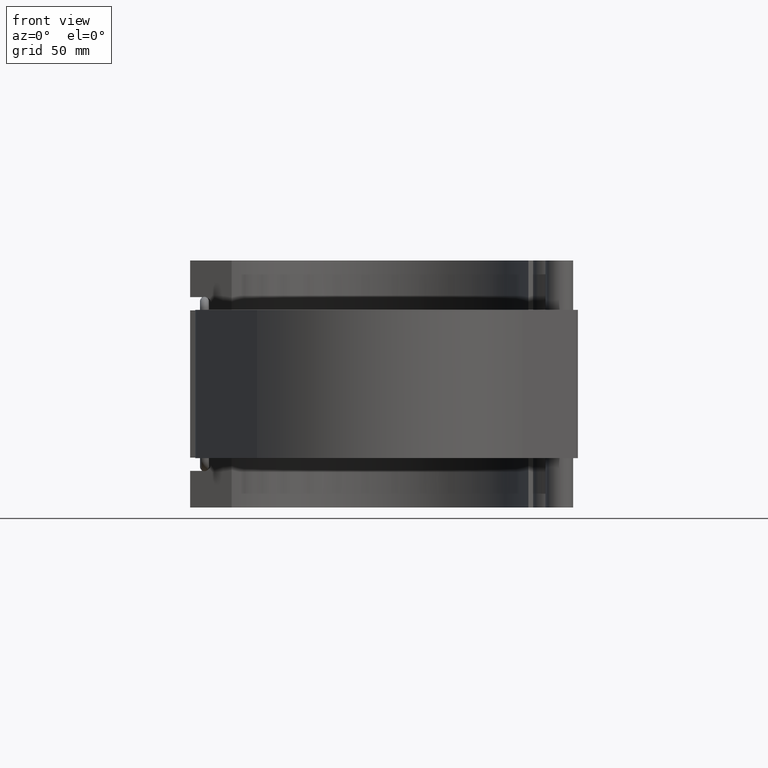
[diagram: clean part render]
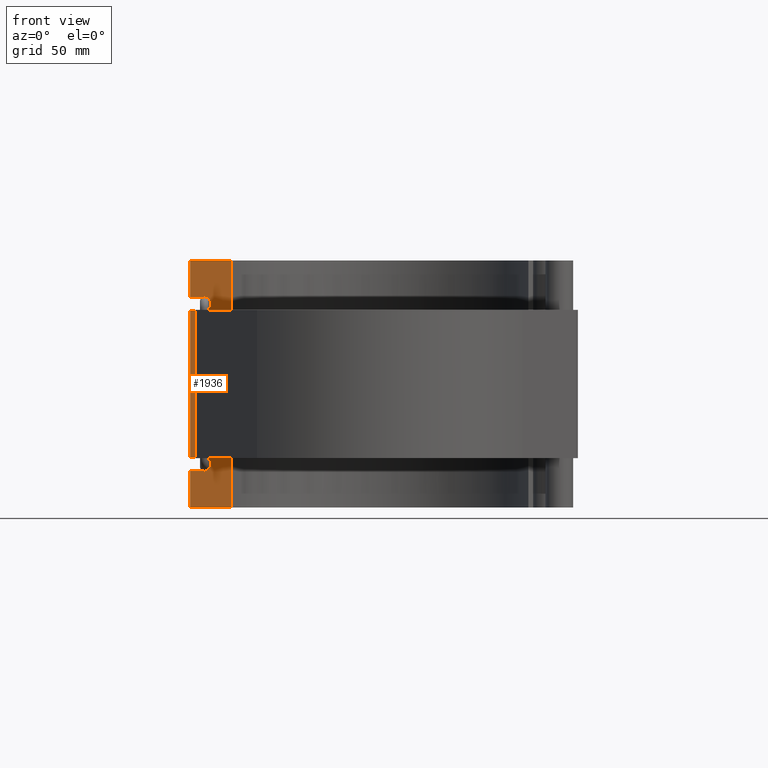
[diagram: same view with one face highlighted and labeled with its STEP entity id]
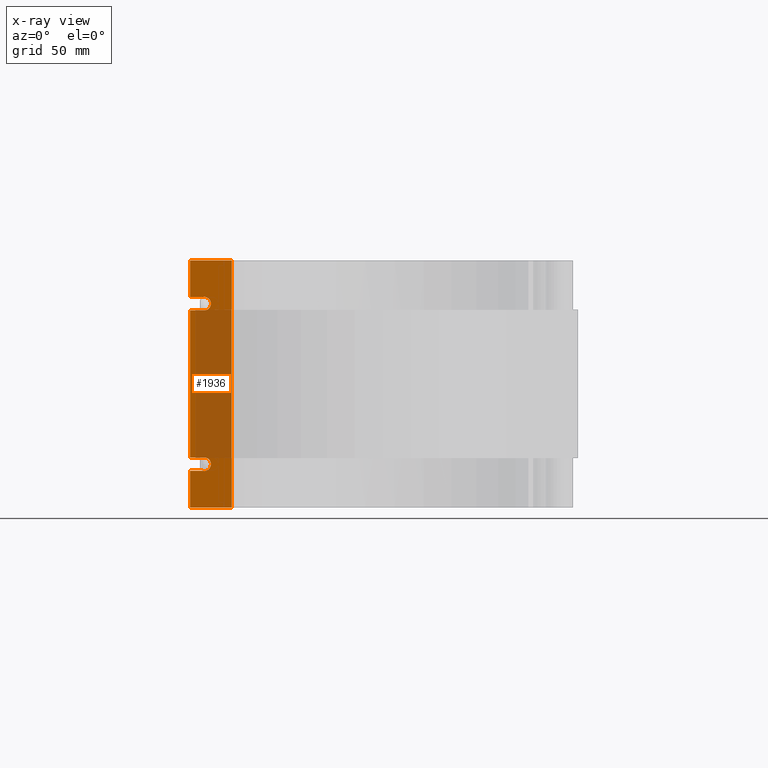
[diagram: x-ray of the same camera — body ghosted, the highlighted face saturated]
A machine part, front view. The second image highlights one B-rep face of the part: STEP entity #1936.
The next image is the same camera in x-ray: the body ghosted, the highlighted face saturated — about 55% of this face is hidden behind the body in this view.
In plain terms, the highlighted planar face has unit normal (0.342, 0.9397, 0).
Its self-contained STEP definition (entity closure, byte-faithful):
#18=ELLIPSE('',#2098,3.35215998329914,3.15000000000001);
#25=ELLIPSE('',#2109,3.35215998329914,3.15000000000001);
#125=LINE('',#3393,#286);
#133=LINE('',#3414,#294);
#136=LINE('',#3420,#297);
#137=LINE('',#3422,#298);
#138=LINE('',#3424,#299);
#139=LINE('',#3426,#300);
#140=LINE('',#3427,#301);
#141=LINE('',#3431,#302);
#142=LINE('',#3433,#303);
#143=LINE('',#3435,#304);
#286=VECTOR('',#2530,9.71612615651478);
#294=VECTOR('',#2552,9.71612615651472);
#297=VECTOR('',#2557,26.075);
#298=VECTOR('',#2558,31.4999999999999);
#299=VECTOR('',#2559,176.);
#300=VECTOR('',#2560,31.4999999999999);
#301=VECTOR('',#2561,26.075);
#302=VECTOR('',#2564,11.0249999999999);
#303=VECTOR('',#2565,104.95);
#304=VECTOR('',#2566,11.0249999999999);
#515=FACE_OUTER_BOUND('',#655,.T.);
#655=EDGE_LOOP('',(#1547,#1548,#1549,#1550,#1551,#1552,#1553,#1554,#1555,
#1556,#1557,#1558,#1559,#1560));
#787=CIRCLE('',#2121,4.725);
#788=CIRCLE('',#2122,4.725);
#914=VERTEX_POINT('',#3335);
#916=VERTEX_POINT('',#3338);
#925=VERTEX_POINT('',#3365);
#928=VERTEX_POINT('',#3372);
#933=VERTEX_POINT('',#3391);
#939=VERTEX_POINT('',#3413);
#941=VERTEX_POINT('',#3419);
#942=VERTEX_POINT('',#3421);
#943=VERTEX_POINT('',#3423);
#944=VERTEX_POINT('',#3425);
#945=VERTEX_POINT('',#3428);
#946=VERTEX_POINT('',#3430);
#947=VERTEX_POINT('',#3432);
#948=VERTEX_POINT('',#3434);
#1131=EDGE_CURVE('',#916,#914,#18,.T.);
#1146=EDGE_CURVE('',#925,#928,#25,.T.);
#1153=EDGE_CURVE('',#914,#933,#125,.T.);
#1163=EDGE_CURVE('',#939,#925,#133,.T.);
#1166=EDGE_CURVE('',#941,#933,#136,.T.);
#1167=EDGE_CURVE('',#942,#941,#137,.T.);
#1168=EDGE_CURVE('',#943,#942,#138,.T.);
#1169=EDGE_CURVE('',#944,#943,#139,.T.);
#1170=EDGE_CURVE('',#939,#944,#140,.T.);
#1171=EDGE_CURVE('',#928,#945,#787,.T.);
#1172=EDGE_CURVE('',#945,#946,#141,.T.);
#1173=EDGE_CURVE('',#947,#946,#142,.T.);
#1174=EDGE_CURVE('',#947,#948,#143,.T.);
#1175=EDGE_CURVE('',#948,#916,#788,.T.);
#1547=ORIENTED_EDGE('',*,*,#1131,.T.);
#1548=ORIENTED_EDGE('',*,*,#1153,.T.);
#1549=ORIENTED_EDGE('',*,*,#1166,.F.);
#1550=ORIENTED_EDGE('',*,*,#1167,.F.);
#1551=ORIENTED_EDGE('',*,*,#1168,.F.);
#1552=ORIENTED_EDGE('',*,*,#1169,.F.);
#1553=ORIENTED_EDGE('',*,*,#1170,.F.);
#1554=ORIENTED_EDGE('',*,*,#1163,.T.);
#1555=ORIENTED_EDGE('',*,*,#1146,.T.);
#1556=ORIENTED_EDGE('',*,*,#1171,.T.);
#1557=ORIENTED_EDGE('',*,*,#1172,.T.);
#1558=ORIENTED_EDGE('',*,*,#1173,.F.);
#1559=ORIENTED_EDGE('',*,*,#1174,.T.);
#1560=ORIENTED_EDGE('',*,*,#1175,.T.);
#1840=PLANE('',#2120);
#1936=ADVANCED_FACE('',(#515),#1840,.F.);
#2098=AXIS2_PLACEMENT_3D('',#3339,#2490,#2491);
#2109=AXIS2_PLACEMENT_3D('',#3379,#2517,#2518);
#2120=AXIS2_PLACEMENT_3D('',#3418,#2555,#2556);
#2121=AXIS2_PLACEMENT_3D('',#3429,#2562,#2563);
#2122=AXIS2_PLACEMENT_3D('',#3436,#2567,#2568);
#2490=DIRECTION('center_axis',(0.342020143325669,0.939692620785908,0.));
#2491=DIRECTION('ref_axis',(-0.939692620785908,0.342020143325669,-2.3940616462252E-17));
#2517=DIRECTION('center_axis',(0.342020143325669,0.939692620785908,0.));
#2518=DIRECTION('ref_axis',(-0.939692620785908,0.342020143325669,-2.3940616462252E-17));
#2530=DIRECTION('',(-0.939692620785908,0.342020143325669,-2.35737597769269E-16));
#2552=DIRECTION('',(0.939692620785908,-0.342020143325669,3.85262584250772E-16));
#2555=DIRECTION('center_axis',(0.342020143325669,0.939692620785908,0.));
#2556=DIRECTION('ref_axis',(0.939692620785909,-0.342020143325669,0.));
#2557=DIRECTION('',(0.,0.,1.));
#2558=DIRECTION('',(-0.939692620785908,0.342020143325669,0.));
#2559=DIRECTION('',(0.,0.,-1.));
#2560=DIRECTION('',(0.939692620785908,-0.342020143325669,0.));
#2561=DIRECTION('',(0.,0.,1.));
#2562=DIRECTION('center_axis',(0.342020143325669,0.939692620785908,0.));
#2563=DIRECTION('ref_axis',(0.939692620785908,-0.342020143325669,8.62126112877666E-17));
#2564=DIRECTION('',(-0.939692620785908,0.342020143325669,-8.62126112877666E-17));
#2565=DIRECTION('',(0.,0.,1.));
#2566=DIRECTION('',(0.939692620785908,-0.342020143325669,1.60975104528518E-16));
#2567=DIRECTION('center_axis',(0.342020143325669,0.939692620785908,0.));
#2568=DIRECTION('ref_axis',(0.939692620785908,-0.342020143325669,8.62126112877666E-17));
#3335=CARTESIAN_POINT('',(-126.185565341269,45.9277897782748,-61.925));
#3338=CARTESIAN_POINT('',(-123.515394216999,44.9559269686437,-61.6695155651292));
#3339=CARTESIAN_POINT('Origin',(-125.121951219512,45.5406658972102,-58.96));
#3365=CARTESIAN_POINT('',(-126.185565341269,45.9277897782748,61.925));
#3372=CARTESIAN_POINT('',(-123.515394216999,44.9559269686436,61.6695155651291));
#3379=CARTESIAN_POINT('Origin',(-125.121951219512,45.5406658972102,58.96));
#3391=CARTESIAN_POINT('',(-135.315737393171,49.2509006388963,-61.925));
#3393=CARTESIAN_POINT('',(-123.940758218557,45.1107468039391,-61.925));
#3413=CARTESIAN_POINT('',(-135.315737393171,49.2509006388963,61.925));
#3414=CARTESIAN_POINT('',(-151.849629055899,55.2687450607115,61.925));
#3418=CARTESIAN_POINT('Origin',(-122.925890188109,44.7413650491474,88.));
#3419=CARTESIAN_POINT('',(-135.315737393171,49.2509006388962,-88.));
#3420=CARTESIAN_POINT('',(-135.315737393171,49.2509006388962,-88.));
#3421=CARTESIAN_POINT('',(-105.715419838415,38.4772661241378,-88.));
#3422=CARTESIAN_POINT('',(-122.402768893554,44.5509644690188,-88.));
#3423=CARTESIAN_POINT('',(-105.715419838415,38.4772661241378,88.));
#3424=CARTESIAN_POINT('',(-105.715419838415,38.4772661241378,0.));
#3425=CARTESIAN_POINT('',(-135.315737393171,49.2509006388962,88.));
#3426=CARTESIAN_POINT('',(-122.402768893554,44.5509644690188,88.));
#3427=CARTESIAN_POINT('',(-135.315737393171,49.2509006388962,-88.));
#3428=CARTESIAN_POINT('',(-124.955626249006,45.4801285587308,52.475));
#3429=CARTESIAN_POINT('Origin',(-124.955626249006,45.4801285587308,57.2));
#3430=CARTESIAN_POINT('',(-135.315737393171,49.2509006388963,52.475));
#3431=CARTESIAN_POINT('',(-123.940758218557,45.1107468039391,52.475));
#3432=CARTESIAN_POINT('',(-135.315737393171,49.2509006388963,-52.475));
#3433=CARTESIAN_POINT('',(-135.315737393171,49.2509006388962,-88.));
#3434=CARTESIAN_POINT('',(-124.955626249006,45.4801285587308,-52.475));
#3435=CARTESIAN_POINT('',(-151.849629055899,55.2687450607115,-52.475));
#3436=CARTESIAN_POINT('Origin',(-124.955626249006,45.4801285587308,-57.2));